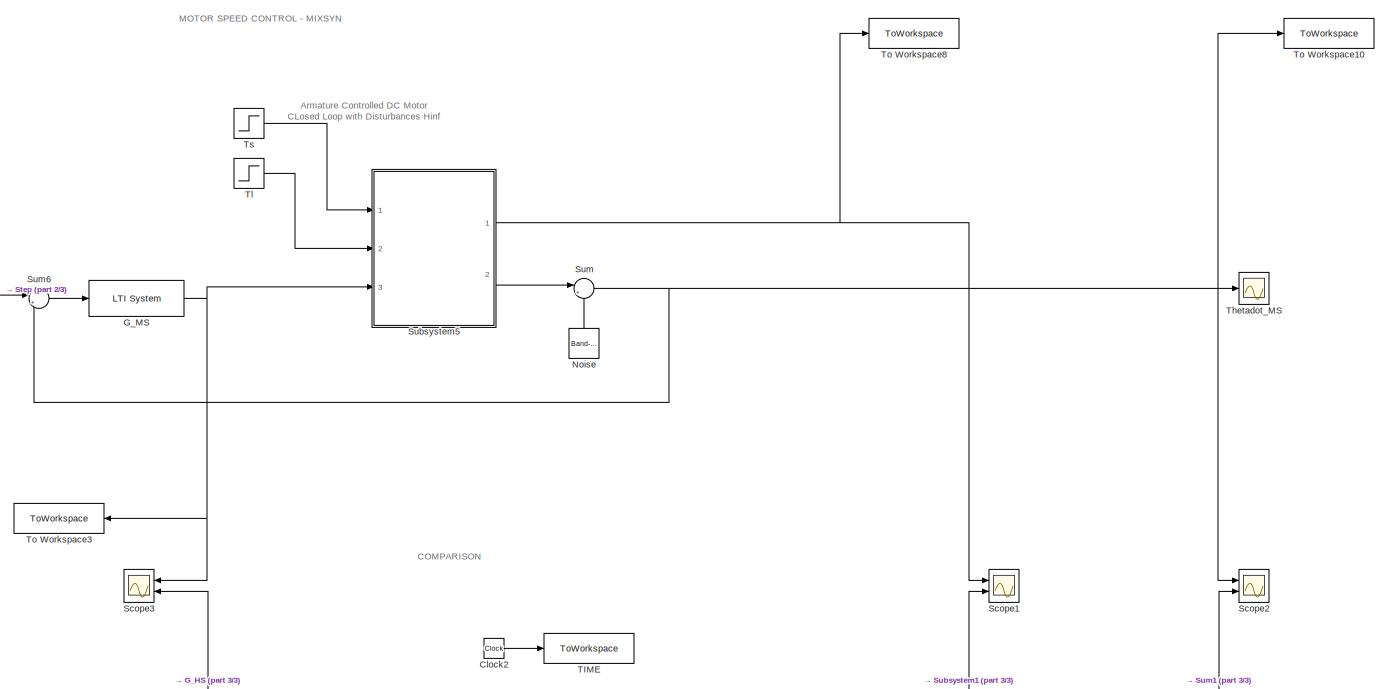
[diagram: root canvas - part 1/3, full width, top band]
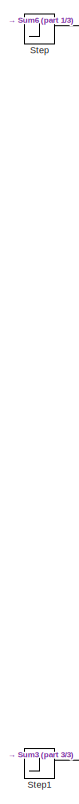
[diagram: root canvas - part 2/3, middle left region]
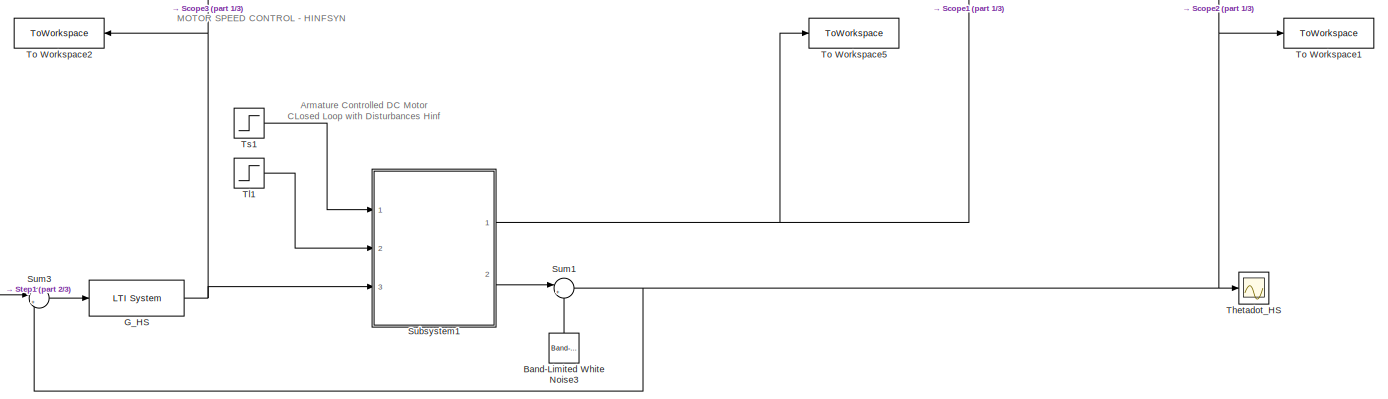
[diagram: root canvas - part 3/3, full width, bottom band]
MODEL slx_46e5529e3a83
KIND model
CONFIG AbsTol = auto
CONFIG EnableMultiTasking = off
CONFIG FixedStep = auto
CONFIG MaxStep = auto
CONFIG MinStep = auto
CONFIG RelTol = 1e-3
CONFIG SampleTimeConstraint = Unconstrained
CONFIG SolverName = VariableStepAuto
CONFIG StartTime = 0.0
CONFIG StopTime = 1
BLOCK [Reference] Band-Limited White Noise3  REF=simulink/Sources/Band-Limited
White Noise
  NameLocation = right
  Ports = [0, 1]
  SourceBlock = simulink/Sources/Band-Limited\nWhite Noise
  SourceProductBaseCode = SL
  SourceType = Band-Limited White Noise.
BLOCK [Clock] Clock2
BLOCK [Reference] G_HS  REF=cstblocks/LTI System
  Ports = [1, 1]
  SourceBlock = cstblocks/LTI System
  SourceProductBaseCode = CT
  SourceType = LTI Block
BLOCK [Reference] G_MS  REF=cstblocks/LTI System
  Ports = [1, 1]
  SourceBlock = cstblocks/LTI System
  SourceProductBaseCode = CT
  SourceType = LTI Block
BLOCK [Reference] Noise  REF=simulink/Sources/Band-Limited
White Noise
  NameLocation = right
  Ports = [0, 1]
  SourceBlock = simulink/Sources/Band-Limited\nWhite Noise
  SourceProductBaseCode = SL
  SourceType = Band-Limited White Noise.
BLOCK [Scope] Scope1
  Floating = off
  NumInputPorts = 2
  Ports = [2]
  ScopeSpecificationString = Simulink.scopes.TimeScopeBlockCfg('CurrentConfiguration', extmgr.ConfigurationSet(extmgr.Configuration('Core','General UI',true),extmgr.Configuration('Core','Source UI',true),extmgr.Configuration('Sources','WiredSimulink',true,'DataLoggingVariableName','ScopeData7'),extmgr.Configuration('Visuals','Time Domain',true,'SerializedDisplays',{struct('MinYLimReal','-0.13887','MaxYLimReal','1.2498','YLabe...<+1428ch>
BLOCK [Scope] Scope2
  Floating = off
  NumInputPorts = 2
  Ports = [2]
  ScopeSpecificationString = Simulink.scopes.TimeScopeBlockCfg('CurrentConfiguration', extmgr.ConfigurationSet(extmgr.Configuration('Core','General UI',true),extmgr.Configuration('Core','Source UI',true),extmgr.Configuration('Sources','WiredSimulink',true,'DataLoggingVariableName','ScopeData8'),extmgr.Configuration('Visuals','Time Domain',true,'SerializedDisplays',{struct('MinYLimReal','-3106.86272','MaxYLimReal','27952.2092'...<+1470ch>
BLOCK [Scope] Scope3
  Floating = off
  NameLocation = top
  NumInputPorts = 2
  Ports = [2]
  ScopeSpecificationString = Simulink.scopes.TimeScopeBlockCfg('CurrentConfiguration', extmgr.ConfigurationSet(extmgr.Configuration('Core','General UI',true),extmgr.Configuration('Core','Source UI',true),extmgr.Configuration('Sources','WiredSimulink',true,'DataLoggingVariableName','ScopeData12'),extmgr.Configuration('Visuals','Time Domain',true,'SerializedDisplays',{struct('MinYLimReal','6.08080559450385','MaxYLimReal','6.080...<+1520ch>
BLOCK [Step] Step
  After = 25000
  SampleTime = 0
  Time = 0
BLOCK [Step] Step1
  After = 25000
  SampleTime = 0
  Time = 0
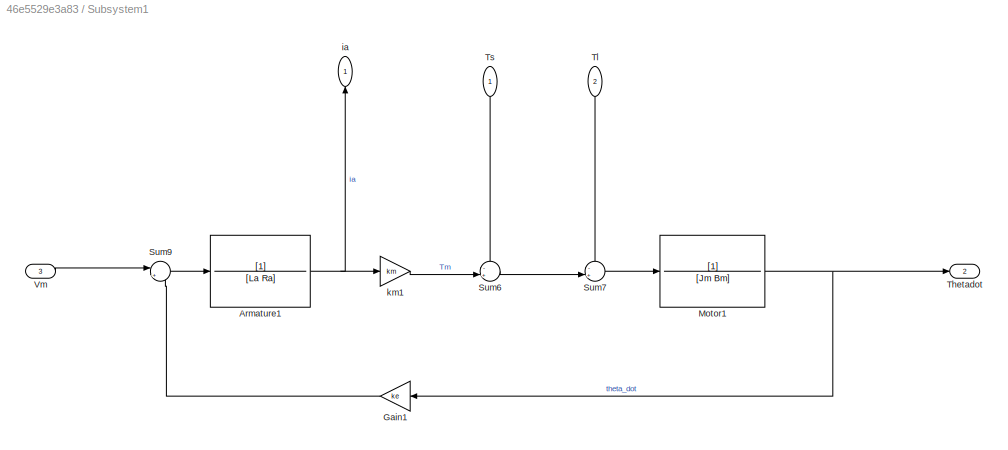
BLOCK [SubSystem] Subsystem1
  Ports = [3, 2]
  RequestExecContextInheritance = off
BLOCK [TransferFcn] Subsystem1/Armature1
  Denominator = [La Ra]
BLOCK [Gain] Subsystem1/Gain1
  Gain = ke
  NameLocation = top
BLOCK [TransferFcn] Subsystem1/Motor1
  Denominator = [Jm Bm]
BLOCK [Sum] Subsystem1/Sum6
  Inputs = -+|
  Ports = [2, 1]
BLOCK [Sum] Subsystem1/Sum7
  Inputs = -+|
  Ports = [2, 1]
BLOCK [Sum] Subsystem1/Sum9
  Inputs = |+-
  Ports = [2, 1]
BLOCK [Outport] Subsystem1/Thetadot
  Port = 2
BLOCK [Inport] Subsystem1/Tl
  NameLocation = left
  Port = 2
BLOCK [Inport] Subsystem1/Ts
  NameLocation = left
BLOCK [Inport] Subsystem1/Vm
  Port = 3
BLOCK [Outport] Subsystem1/ia
  NameLocation = right
BLOCK [Gain] Subsystem1/km1
  Gain = km
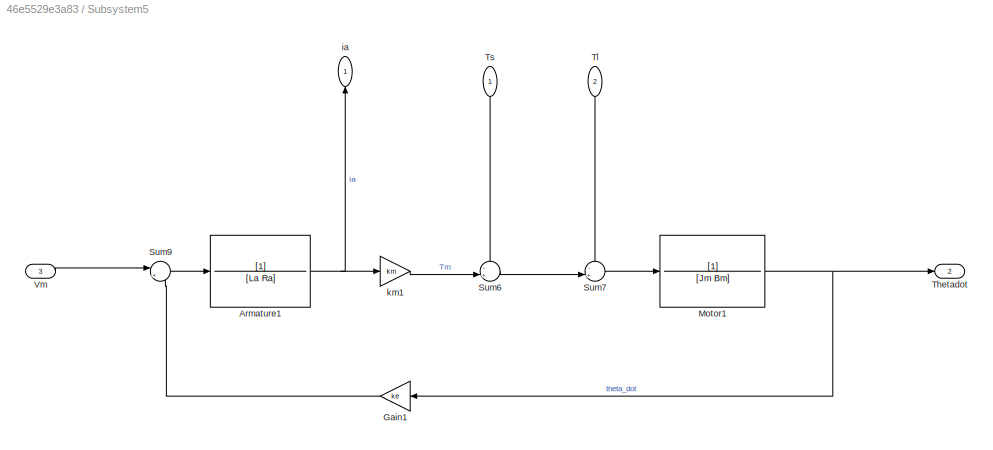
BLOCK [SubSystem] Subsystem5
  Ports = [3, 2]
  RequestExecContextInheritance = off
BLOCK [TransferFcn] Subsystem5/Armature1
  Denominator = [La Ra]
BLOCK [Gain] Subsystem5/Gain1
  Gain = ke
  NameLocation = top
BLOCK [TransferFcn] Subsystem5/Motor1
  Denominator = [Jm Bm]
BLOCK [Sum] Subsystem5/Sum6
  Inputs = -+|
  Ports = [2, 1]
BLOCK [Sum] Subsystem5/Sum7
  Inputs = -+|
  Ports = [2, 1]
BLOCK [Sum] Subsystem5/Sum9
  Inputs = |+-
  Ports = [2, 1]
BLOCK [Outport] Subsystem5/Thetadot
  Port = 2
BLOCK [Inport] Subsystem5/Tl
  NameLocation = left
  Port = 2
BLOCK [Inport] Subsystem5/Ts
  NameLocation = left
BLOCK [Inport] Subsystem5/Vm
  Port = 3
BLOCK [Outport] Subsystem5/ia
  NameLocation = right
BLOCK [Gain] Subsystem5/km1
  Gain = km
BLOCK [Sum] Sum
  Inputs = |++
  Ports = [2, 1]
BLOCK [Sum] Sum1
  Inputs = |++
  Ports = [2, 1]
BLOCK [Sum] Sum3
  Inputs = |+-
  Ports = [2, 1]
BLOCK [Sum] Sum6
  Inputs = |+-
  Ports = [2, 1]
BLOCK [ToWorkspace] TIME
  FixptAsFi = on
  MaxDataPoints = inf
  Ports = [1]
  SampleTime = -1
  VariableName = T
BLOCK [Scope] Thetadot_HS
  Floating = off
  NumInputPorts = 1
  Ports = [1]
  ScopeSpecificationString = Simulink.scopes.TimeScopeBlockCfg('CurrentConfiguration', extmgr.ConfigurationSet(extmgr.Configuration('Core','General UI',true),extmgr.Configuration('Core','Source UI',true),extmgr.Configuration('Sources','WiredSimulink',true,'DataLoggingVariableName','ScopeData5'),extmgr.Configuration('Visuals','Time Domain',true,'SerializedDisplays',{struct('MinYLimReal','-3047.15994','MaxYLimReal','27411.31916...<+1408ch>
BLOCK [Scope] Thetadot_MS
  Floating = off
  NumInputPorts = 1
  Ports = [1]
  ScopeSpecificationString = Simulink.scopes.TimeScopeBlockCfg('CurrentConfiguration', extmgr.ConfigurationSet(extmgr.Configuration('Core','General UI',true),extmgr.Configuration('Core','Source UI',true),extmgr.Configuration('Sources','WiredSimulink',true),extmgr.Configuration('Visuals','Time Domain',true,'SerializedDisplays',{struct('MinYLimReal','-3029.03484','MaxYLimReal','26158.41795','YLabelReal','','MinYLimMag','  0.000...<+1426ch>
BLOCK [Step] Tl
  After = Tl
  SampleTime = 0
  Time = 0
BLOCK [Step] Tl1
  After = Tl
  SampleTime = 0
  Time = 0
BLOCK [ToWorkspace] To Workspace1
  FixptAsFi = on
  MaxDataPoints = inf
  Ports = [1]
  SampleTime = -1
  VariableName = Thetadot_HS
BLOCK [ToWorkspace] To Workspace10
  FixptAsFi = on
  MaxDataPoints = inf
  Ports = [1]
  SampleTime = -1
  VariableName = Thetadot_MS
BLOCK [ToWorkspace] To Workspace2
  FixptAsFi = on
  MaxDataPoints = inf
  NameLocation = top
  Ports = [1]
  SampleTime = -1
  VariableName = u_HS
BLOCK [ToWorkspace] To Workspace3
  FixptAsFi = on
  MaxDataPoints = inf
  NameLocation = top
  Ports = [1]
  SampleTime = -1
  VariableName = u_MS
BLOCK [ToWorkspace] To Workspace5
  FixptAsFi = on
  MaxDataPoints = inf
  Ports = [1]
  SampleTime = -1
  VariableName = I_HS
BLOCK [ToWorkspace] To Workspace8
  FixptAsFi = on
  MaxDataPoints = inf
  Ports = [1]
  SampleTime = -1
  VariableName = I_MS
BLOCK [Step] Ts
  After = Ts
  SampleTime = 0
  Time = 0
BLOCK [Step] Ts1
  After = Ts
  SampleTime = 0
  Time = 0
ANNOTATION (root): MOTOR SPEED CONTROL - HINFSYN
ANNOTATION (root): MOTOR SPEED CONTROL - MIXSYN
ANNOTATION (root): COMPARISON
ANNOTATION (root): Armature Controlled DC Motor CLosed Loop with Disturbances Hinf
LINE Band-Limited White Noise3:1 -> Sum1:2
LINE Clock2:1 -> TIME:1
NET G_HS:1 -> Scope3:2, Subsystem1:3, To Workspace2:1
NET G_MS:1 -> Scope3:1, Subsystem5:3, To Workspace3:1
LINE Noise:1 -> Sum:2
LINE Step1:1 -> Sum3:1
LINE Step:1 -> Sum6:1
NET Subsystem1/Armature1:1 -> Subsystem1/ia:1, Subsystem1/km1:1
LINE Subsystem1/Gain1:1 -> Subsystem1/Sum9:2
NET Subsystem1/Motor1:1 -> Subsystem1/Gain1:1, Subsystem1/Thetadot:1
LINE Subsystem1/Sum6:1 -> Subsystem1/Sum7:2
LINE Subsystem1/Sum7:1 -> Subsystem1/Motor1:1
LINE Subsystem1/Sum9:1 -> Subsystem1/Armature1:1
LINE Subsystem1/Tl:1 -> Subsystem1/Sum7:1
LINE Subsystem1/Ts:1 -> Subsystem1/Sum6:1
LINE Subsystem1/Vm:1 -> Subsystem1/Sum9:1
LINE Subsystem1/km1:1 -> Subsystem1/Sum6:2
NET Subsystem1:1 -> Scope1:2, To Workspace5:1
LINE Subsystem1:2 -> Sum1:1
NET Subsystem5/Armature1:1 -> Subsystem5/ia:1, Subsystem5/km1:1
LINE Subsystem5/Gain1:1 -> Subsystem5/Sum9:2
NET Subsystem5/Motor1:1 -> Subsystem5/Gain1:1, Subsystem5/Thetadot:1
LINE Subsystem5/Sum6:1 -> Subsystem5/Sum7:2
LINE Subsystem5/Sum7:1 -> Subsystem5/Motor1:1
LINE Subsystem5/Sum9:1 -> Subsystem5/Armature1:1
LINE Subsystem5/Tl:1 -> Subsystem5/Sum7:1
LINE Subsystem5/Ts:1 -> Subsystem5/Sum6:1
LINE Subsystem5/Vm:1 -> Subsystem5/Sum9:1
LINE Subsystem5/km1:1 -> Subsystem5/Sum6:2
NET Subsystem5:1 -> Scope1:1, To Workspace8:1
LINE Subsystem5:2 -> Sum:1
NET Sum1:1 -> Scope2:2, Sum3:2, Thetadot_HS:1, To Workspace1:1
LINE Sum3:1 -> G_HS:1
LINE Sum6:1 -> G_MS:1
NET Sum:1 -> Scope2:1, Sum6:2, Thetadot_MS:1, To Workspace10:1
LINE Tl1:1 -> Subsystem1:2
LINE Tl:1 -> Subsystem5:2
LINE Ts1:1 -> Subsystem1:1
LINE Ts:1 -> Subsystem5:1
note: NET lines group one-source signal fan-out (src -> all destinations, sorted); 1:1 wires keep LINE
